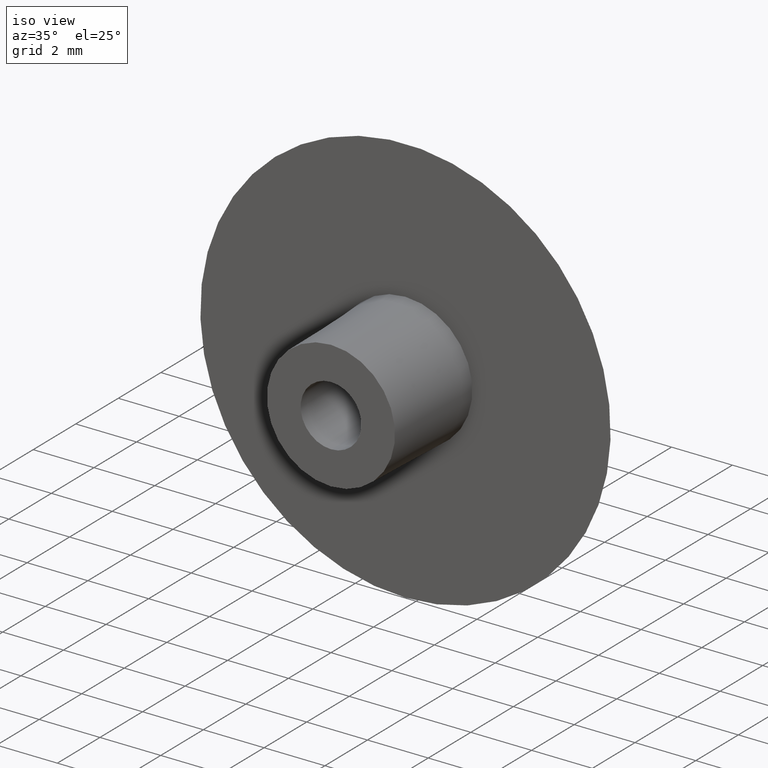
[diagram: clean part render]
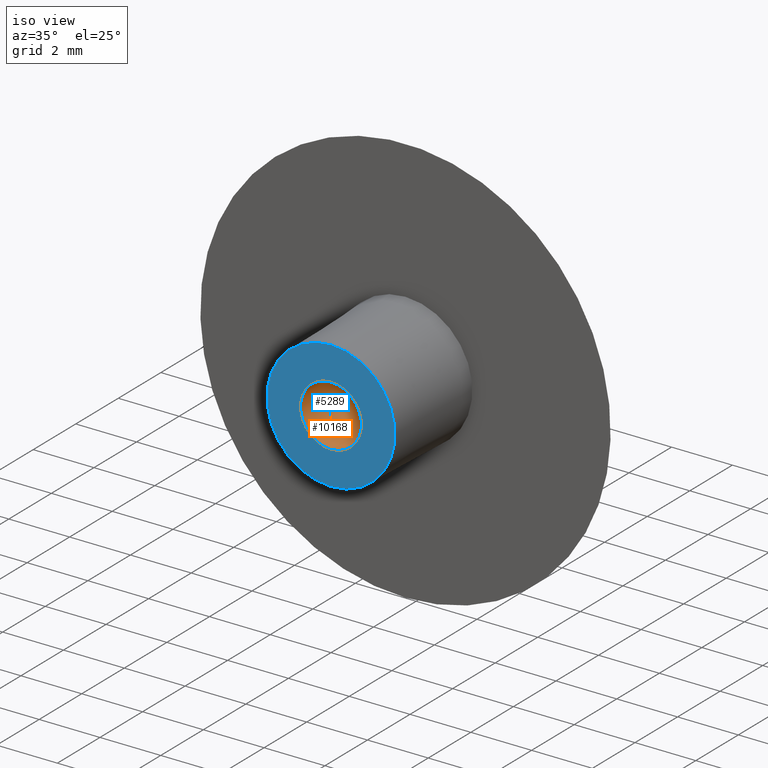
[diagram: same view with the hole feature highlighted: cylindrical wall and planar end face, labeled with their STEP entity ids]
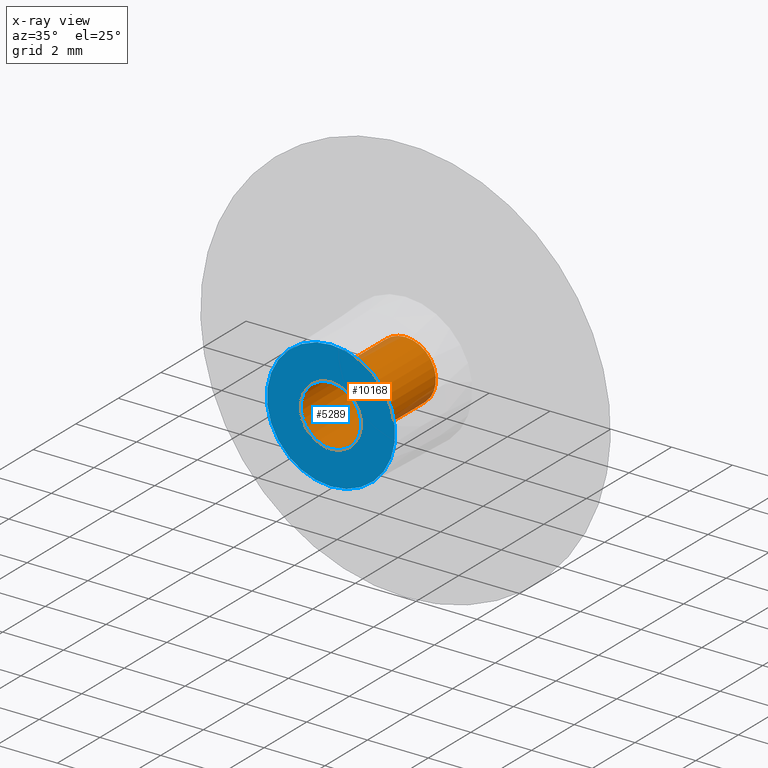
[diagram: x-ray of the same camera — body ghosted, the hole faces saturated]
A machine part, iso view. The highlighted faces form one hole feature of diameter 2 mm: the cylindrical wall (entity #10168, orange) and its adjacent planar end face (entity #5289, blue) — they share a circular edge in the B-rep.
The next image is the same camera in x-ray (body ghosted, the hole faces saturated) — the bore reads through the body.
Wall:
#15 = EDGE_CURVE ( 'NONE', #3871, #3871, #5540, .T. ) ;
#297 = AXIS2_PLACEMENT_3D ( 'NONE', #10672, #727, #6548 ) ;
#727 = DIRECTION ( 'NONE',  ( -0.000000000000000000, -1.000000000000000000, -0.000000000000000000 ) ) ;
#878 = DIRECTION ( 'NONE',  ( -0.000000000000000000, -1.000000000000000000, -0.000000000000000000 ) ) ;
#1632 = CARTESIAN_POINT ( 'NONE',  ( 0.000000000000000000, 0.000000000000000000, -1.000000000000000444 ) ) ;
#1708 = CARTESIAN_POINT ( 'NONE',  ( 0.000000000000000000, 3.500000000000000000, -1.000000000000000000 ) ) ;
#2175 = FACE_OUTER_BOUND ( 'NONE', #10729, .T. ) ;
#2741 = CIRCLE ( 'NONE', #3028, 1.000000000000000000 ) ;
#2747 = DIRECTION ( 'NONE',  ( 0.000000000000000000, 0.000000000000000000, -1.000000000000000000 ) ) ;
#3028 = AXIS2_PLACEMENT_3D ( 'NONE', #4379, #7727, #2747 ) ;
#3482 = FACE_OUTER_BOUND ( 'NONE', #5262, .T. ) ;
#3871 = VERTEX_POINT ( 'NONE', #1632 ) ;
#4379 = CARTESIAN_POINT ( 'NONE',  ( 0.000000000000000000, 3.500000000000000000, 0.000000000000000000 ) ) ;
#5262 = EDGE_LOOP ( 'NONE', ( #5795 ) ) ;
#5540 = CIRCLE ( 'NONE', #6571, 1.000000000000000444 ) ;
#5560 = ORIENTED_EDGE ( 'NONE', *, *, #15, .T. ) ;
#5795 = ORIENTED_EDGE ( 'NONE', *, *, #6322, .F. ) ;
#6322 = EDGE_CURVE ( 'NONE', #9110, #9110, #2741, .T. ) ;
#6548 = DIRECTION ( 'NONE',  ( 0.000000000000000000, 0.000000000000000000, -1.000000000000000000 ) ) ;
#6571 = AXIS2_PLACEMENT_3D ( 'NONE', #8417, #878, #9161 ) ;
#7727 = DIRECTION ( 'NONE',  ( -0.000000000000000000, -1.000000000000000000, -0.000000000000000000 ) ) ;
#8417 = CARTESIAN_POINT ( 'NONE',  ( 0.000000000000000000, 0.000000000000000000, 0.000000000000000000 ) ) ;
#9110 = VERTEX_POINT ( 'NONE', #1708 ) ;
#9161 = DIRECTION ( 'NONE',  ( 0.000000000000000000, 0.000000000000000000, -1.000000000000000000 ) ) ;
#10168 = ADVANCED_FACE ( 'NONE', ( #2175, #3482 ), #10752, .F. ) ;
#10672 = CARTESIAN_POINT ( 'NONE',  ( 0.000000000000000000, 3.500000000000000000, 0.000000000000000000 ) ) ;
#10729 = EDGE_LOOP ( 'NONE', ( #5560 ) ) ;
#10752 = CYLINDRICAL_SURFACE ( 'NONE', #297, 1.000000000000000222 ) ;
End face:
#15 = EDGE_CURVE ( 'NONE', #3871, #3871, #5540, .T. ) ;
#800 = EDGE_LOOP ( 'NONE', ( #896 ) ) ;
#878 = DIRECTION ( 'NONE',  ( -0.000000000000000000, -1.000000000000000000, -0.000000000000000000 ) ) ;
#896 = ORIENTED_EDGE ( 'NONE', *, *, #15, .F. ) ;
#1632 = CARTESIAN_POINT ( 'NONE',  ( 0.000000000000000000, 0.000000000000000000, -1.000000000000000444 ) ) ;
#3860 = CARTESIAN_POINT ( 'NONE',  ( 1.000000000000000444, -7.523163845262640051E-34, 0.000000000000000000 ) ) ;
#3871 = VERTEX_POINT ( 'NONE', #1632 ) ;
#3942 = CARTESIAN_POINT ( 'NONE',  ( 0.000000000000000000, 0.000000000000000000, 0.000000000000000000 ) ) ;
#4442 = FACE_BOUND ( 'NONE', #800, .T. ) ;
#4698 = DIRECTION ( 'NONE',  ( 0.000000000000000000, 0.000000000000000000, -1.000000000000000000 ) ) ;
#5289 = ADVANCED_FACE ( 'NONE', ( #8316, #4442 ), #8849, .T. ) ;
#5540 = CIRCLE ( 'NONE', #6571, 1.000000000000000444 ) ;
#5749 = EDGE_LOOP ( 'NONE', ( #7439 ) ) ;
#6336 = DIRECTION ( 'NONE',  ( 0.000000000000000000, -1.000000000000000000, -0.000000000000000000 ) ) ;
#6571 = AXIS2_PLACEMENT_3D ( 'NONE', #8417, #878, #9161 ) ;
#6867 = CIRCLE ( 'NONE', #8626, 2.108349274507870685 ) ;
#7278 = DIRECTION ( 'NONE',  ( -0.000000000000000000, -1.000000000000000000, -0.000000000000000000 ) ) ;
#7439 = ORIENTED_EDGE ( 'NONE', *, *, #9854, .T. ) ;
#7577 = CARTESIAN_POINT ( 'NONE',  ( 0.000000000000000000, 0.000000000000000000, -2.108349274507870685 ) ) ;
#8316 = FACE_OUTER_BOUND ( 'NONE', #5749, .T. ) ;
#8417 = CARTESIAN_POINT ( 'NONE',  ( 0.000000000000000000, 0.000000000000000000, 0.000000000000000000 ) ) ;
#8626 = AXIS2_PLACEMENT_3D ( 'NONE', #3942, #7278, #9740 ) ;
#8849 = PLANE ( 'NONE',  #10327 ) ;
#9161 = DIRECTION ( 'NONE',  ( 0.000000000000000000, 0.000000000000000000, -1.000000000000000000 ) ) ;
#9640 = VERTEX_POINT ( 'NONE', #7577 ) ;
#9740 = DIRECTION ( 'NONE',  ( 0.000000000000000000, 0.000000000000000000, -1.000000000000000000 ) ) ;
#9854 = EDGE_CURVE ( 'NONE', #9640, #9640, #6867, .T. ) ;
#10327 = AXIS2_PLACEMENT_3D ( 'NONE', #3860, #6336, #4698 ) ;